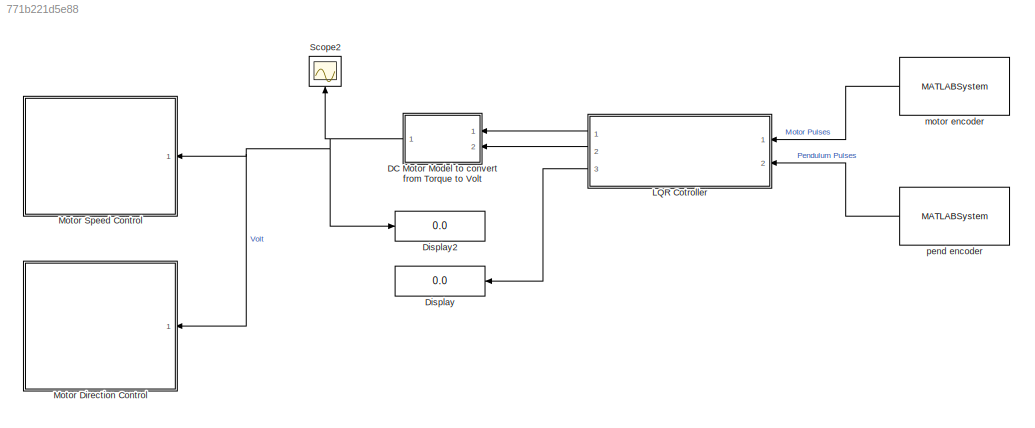
MODEL slx_771b221d5e88
KIND model
CONFIG AbsTol = auto
CONFIG EnableMultiTasking = on
CONFIG FixedStep = auto
CONFIG MaxStep = auto
CONFIG MinStep = auto
CONFIG RelTol = 1e-3
CONFIG SampleTimeConstraint = Unconstrained
CONFIG Solver = FixedStepAuto
CONFIG SolverName = FixedStepAuto
CONFIG StartTime = 0.0
CONFIG StopTime = inf
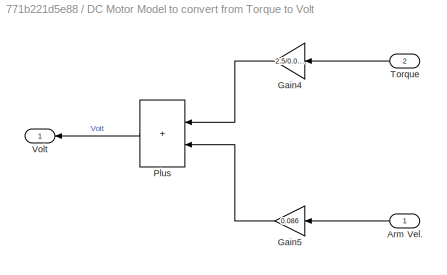
BLOCK [SubSystem] DC Motor Model to convert from Torque to Volt
  NameLocation = top
  Ports = [2, 1]
  RequestExecContextInheritance = off
BLOCK [Inport] DC Motor Model to convert from Torque to Volt/Arm Vel.
  NameLocation = top
BLOCK [Gain] DC Motor Model to convert from Torque to Volt/Gain4
  Gain = 2.5/0.086
  NameLocation = top
BLOCK [Gain] DC Motor Model to convert from Torque to Volt/Gain5
  Gain = 0.086
  NameLocation = top
BLOCK [Sum] DC Motor Model to convert from Torque to Volt/Plus
  IconShape = rectangular
  NameLocation = top
  Ports = [2, 1]
BLOCK [Inport] DC Motor Model to convert from Torque to Volt/Torque
  Port = 2
BLOCK [Outport] DC Motor Model to convert from Torque to Volt/Volt
BLOCK [Display] Display
  Decimation = 1
  NameLocation = top
  Ports = [1]
BLOCK [Display] Display2
  Decimation = 1
  Ports = [1]
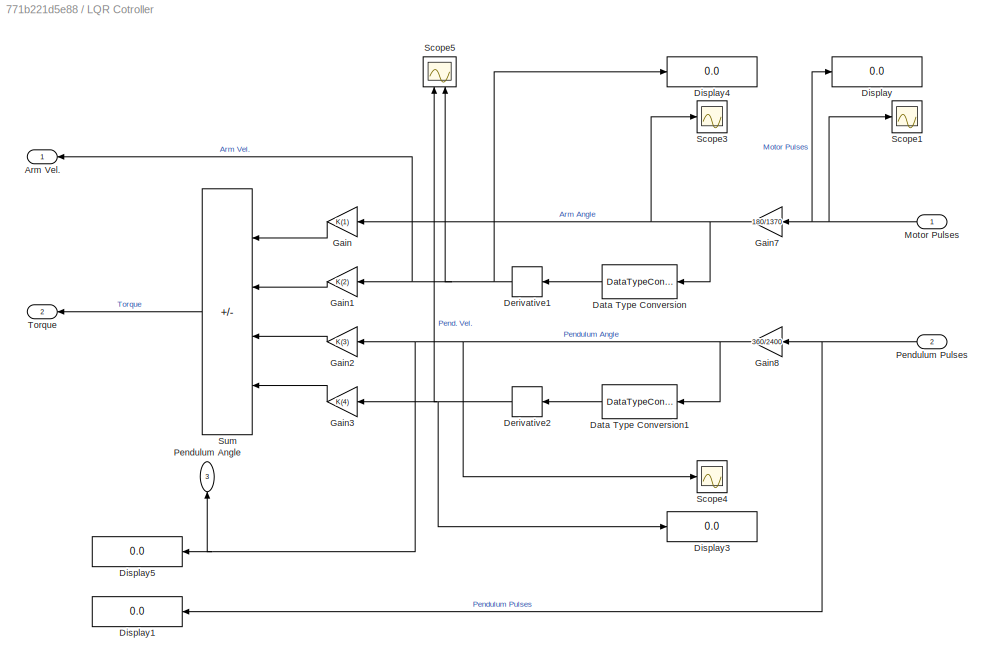
BLOCK [SubSystem] LQR Cotroller
  NameLocation = top
  Ports = [2, 3]
  RequestExecContextInheritance = off
BLOCK [Outport] LQR Cotroller/Arm Vel.
BLOCK [DataTypeConversion] LQR Cotroller/Data Type Conversion
  NameLocation = top
  OutDataTypeStr = double
  RndMeth = Floor
  SaturateOnIntegerOverflow = off
BLOCK [DataTypeConversion] LQR Cotroller/Data Type Conversion1
  NameLocation = top
  OutDataTypeStr = double
  RndMeth = Floor
  SaturateOnIntegerOverflow = off
BLOCK [Derivative] LQR Cotroller/Derivative1
  NameLocation = top
BLOCK [Derivative] LQR Cotroller/Derivative2
  NameLocation = top
BLOCK [Display] LQR Cotroller/Display
  Decimation = 1
  Ports = [1]
BLOCK [Display] LQR Cotroller/Display1
  Decimation = 1
  NameLocation = top
  Ports = [1]
BLOCK [Display] LQR Cotroller/Display3
  Decimation = 1
  Ports = [1]
BLOCK [Display] LQR Cotroller/Display4
  Decimation = 1
  Ports = [1]
BLOCK [Display] LQR Cotroller/Display5
  Decimation = 1
  NameLocation = top
  Ports = [1]
BLOCK [Gain] LQR Cotroller/Gain
  Gain = K(1)
  NameLocation = top
BLOCK [Gain] LQR Cotroller/Gain1
  Gain = K(2)
  NameLocation = top
BLOCK [Gain] LQR Cotroller/Gain2
  Gain = K(3)
  NameLocation = top
BLOCK [Gain] LQR Cotroller/Gain3
  Gain = K(4)
  NameLocation = top
BLOCK [Gain] LQR Cotroller/Gain7
  Gain = 180/1370
  NameLocation = top
BLOCK [Gain] LQR Cotroller/Gain8
  Gain = 360/2400
  NameLocation = top
BLOCK [Inport] LQR Cotroller/Motor Pulses
BLOCK [Outport] LQR Cotroller/Pendulum Angle
  NameLocation = right
  Port = 3
BLOCK [Inport] LQR Cotroller/Pendulum Pulses
  Port = 2
BLOCK [Scope] LQR Cotroller/Scope1
  Floating = off
  NumInputPorts = 1
  Ports = [1]
  ScopeSpecificationString = Simulink.scopes.TimeScopeBlockCfg('CurrentConfiguration', extmgr.ConfigurationSet(extmgr.Configuration('Core','General UI',true),extmgr.Configuration('Core','Source UI',true),extmgr.Configuration('Sources','WiredSimulink',true,'DataLoggingVariableName','ScopeData1'),extmgr.Configuration('Visuals','Time Domain',true),extmgr.Configuration('Tools','Plot Navigation',true),extmgr.Configuration('Tools',...<+40ch>
BLOCK [Scope] LQR Cotroller/Scope3
  Floating = off
  NumInputPorts = 1
  Ports = [1]
  ScopeSpecificationString = Simulink.scopes.TimeScopeBlockCfg('CurrentConfiguration', extmgr.ConfigurationSet(extmgr.Configuration('Core','General UI',true),extmgr.Configuration('Core','Source UI',true),extmgr.Configuration('Sources','WiredSimulink',true,'DataLoggingVariableName','ScopeData1'),extmgr.Configuration('Visuals','Time Domain',true,'SerializedDisplays',{struct('MinYLimReal','-434.41423','MaxYLimReal','187.53832','...<+1485ch>
BLOCK [Scope] LQR Cotroller/Scope4
  Floating = off
  NumInputPorts = 1
  Ports = [1]
  ScopeSpecificationString = Simulink.scopes.TimeScopeBlockCfg('CurrentConfiguration', extmgr.ConfigurationSet(extmgr.Configuration('Core','General UI',true),extmgr.Configuration('Core','Source UI',true),extmgr.Configuration('Sources','WiredSimulink',true,'DataLoggingVariableName','ScopeData2'),extmgr.Configuration('Visuals','Time Domain',true,'SerializedDisplays',{struct('MinYLimReal','-322.35','MaxYLimReal','60.15','YLabelR...<+1465ch>
BLOCK [Scope] LQR Cotroller/Scope5
  Floating = off
  NameLocation = right
  NumInputPorts = 2
  Ports = [2]
  ScopeSpecificationString = Simulink.scopes.TimeScopeBlockCfg('CurrentConfiguration', extmgr.ConfigurationSet(extmgr.Configuration('Core','General UI',true),extmgr.Configuration('Core','Source UI',true),extmgr.Configuration('Sources','WiredSimulink',true,'DataLoggingVariableName','ScopeData1'),extmgr.Configuration('Visuals','Time Domain',true,'SerializedDisplays',{struct('MinYLimReal','-553.16198','MaxYLimReal','628.14315','...<+2052ch>
BLOCK [Sum] LQR Cotroller/Sum
  IconShape = rectangular
  Inputs = ----
  NameLocation = top
  Ports = [4, 1]
BLOCK [Outport] LQR Cotroller/Torque
  Port = 2
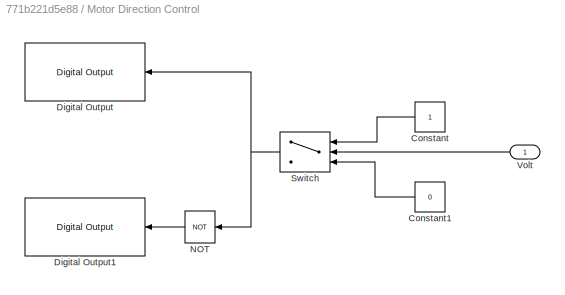
BLOCK [SubSystem] Motor Direction Control
  NameLocation = top
  Ports = [1]
  RequestExecContextInheritance = off
BLOCK [Constant] Motor Direction Control/Constant
  NameLocation = top
BLOCK [Constant] Motor Direction Control/Constant1
  NameLocation = top
  Value = 0
BLOCK [Reference] Motor Direction Control/Digital Output  REF=arduinolib/Digital Output
  NameLocation = top
  Ports = [1]
  SourceBlock = arduinolib/Digital Output
  SourceProductBaseCode = ARDUINO
  SourceType = Arduino Digital Output
BLOCK [Reference] Motor Direction Control/Digital Output1  REF=arduinolib/Digital Output
  NameLocation = top
  Ports = [1]
  SourceBlock = arduinolib/Digital Output
  SourceProductBaseCode = ARDUINO
  SourceType = Arduino Digital Output
BLOCK [Logic] Motor Direction Control/NOT
  AllPortsSameDT = off
  IconShape = distinctive
  NameLocation = top
  Operator = NOT
  OutDataTypeStr = boolean
  Ports = [1, 1]
BLOCK [Switch] Motor Direction Control/Switch
  Criteria = u2 > Threshold
  InputSameDT = off
  NameLocation = top
  SaturateOnIntegerOverflow = off
BLOCK [Inport] Motor Direction Control/Volt
  NameLocation = top
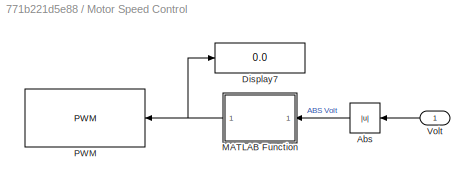
BLOCK [SubSystem] Motor Speed Control
  NameLocation = top
  Ports = [1]
  RequestExecContextInheritance = off
BLOCK [Abs] Motor Speed Control/Abs
  NameLocation = top
  SaturateOnIntegerOverflow = off
BLOCK [Display] Motor Speed Control/Display7
  Decimation = 1
  Ports = [1]
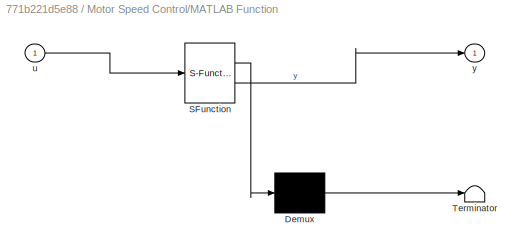
BLOCK [SubSystem] Motor Speed Control/MATLAB Function
  ErrorFcn = Stateflow.Translate.translate
  NameLocation = top
  PermitHierarchicalResolution = ExplicitOnly
  Ports = [1, 1]
  RequestExecContextInheritance = off
  SFBlockType = MATLAB Function
  TreatAsAtomicUnit = on
BLOCK [Demux] Motor Speed Control/MATLAB Function/ Demux 
  Outputs = 1
  Ports = [1, 1]
BLOCK [S-Function] Motor Speed Control/MATLAB Function/ SFunction 
  EnableBusSupport = on
  FunctionName = sf_sfun
  PortCounts = [1 2]
  Ports = [1, 2]
  SFcnIsStateOwnerBlock = off
  SFunctionDeploymentMode = off
  Tag = Stateflow S-Function 2
BLOCK [Terminator] Motor Speed Control/MATLAB Function/ Terminator 
BLOCK [Inport] Motor Speed Control/MATLAB Function/u
BLOCK [Outport] Motor Speed Control/MATLAB Function/y
BLOCK [Reference] Motor Speed Control/PWM  REF=arduinolib/PWM
  NameLocation = top
  Ports = [1]
  SourceBlock = arduinolib/PWM
  SourceProductBaseCode = ARDUINO
  SourceType = Arduino PWM
BLOCK [Inport] Motor Speed Control/Volt
BLOCK [Scope] Scope2
  Floating = off
  NameLocation = right
  NumInputPorts = 1
  Ports = [1]
  ScopeSpecificationString = Simulink.scopes.TimeScopeBlockCfg('CurrentConfiguration', extmgr.ConfigurationSet(extmgr.Configuration('Core','General UI',true),extmgr.Configuration('Core','Source UI',true),extmgr.Configuration('Sources','WiredSimulink',true,'DataLoggingVariableName','ScopeData2'),extmgr.Configuration('Visuals','Time Domain',true,'SerializedDisplays',{struct('MinYLimReal','-222.69532','MaxYLimReal','1690.75263',...<+1479ch>
BLOCK [MATLABSystem] motor encoder
  Encoder = 0
  MaskDisplay = disp('Encoder');\nport_label('output',1,'y');
  MaskType = Encoder_arduino
  NameLocation = top
  PinA = 2
  PinB = 3
  Ports = [0, 1]
  SampleTime = 0.01
  System = Encoder_arduino
BLOCK [MATLABSystem] pend encoder
  Encoder = 1
  MaskDisplay = disp('Encoder');\nport_label('output',1,'y');
  MaskType = Encoder_arduino
  NameLocation = top
  PinA = 18
  PinB = 19
  Ports = [0, 1]
  SampleTime = 0.01
  System = Encoder_arduino
LINE DC Motor Model to convert from Torque to Volt/Arm Vel.:1 -> DC Motor Model to convert from Torque to Volt/Gain5:1
LINE DC Motor Model to convert from Torque to Volt/Gain4:1 -> DC Motor Model to convert from Torque to Volt/Plus:1
LINE DC Motor Model to convert from Torque to Volt/Gain5:1 -> DC Motor Model to convert from Torque to Volt/Plus:2
LINE DC Motor Model to convert from Torque to Volt/Plus:1 -> DC Motor Model to convert from Torque to Volt/Volt:1
LINE DC Motor Model to convert from Torque to Volt/Torque:1 -> DC Motor Model to convert from Torque to Volt/Gain4:1
NET DC Motor Model to convert from Torque to Volt:1 -> Display2:1, Motor Direction Control:1, Motor Speed Control:1, Scope2:1
LINE LQR Cotroller/Data Type Conversion1:1 -> LQR Cotroller/Derivative2:1
LINE LQR Cotroller/Data Type Conversion:1 -> LQR Cotroller/Derivative1:1
NET LQR Cotroller/Derivative1:1 -> LQR Cotroller/Arm Vel.:1, LQR Cotroller/Display4:1, LQR Cotroller/Gain1:1, LQR Cotroller/Scope5:2
NET LQR Cotroller/Derivative2:1 -> LQR Cotroller/Display3:1, LQR Cotroller/Gain3:1, LQR Cotroller/Scope5:1
LINE LQR Cotroller/Gain1:1 -> LQR Cotroller/Sum:2
LINE LQR Cotroller/Gain2:1 -> LQR Cotroller/Sum:3
LINE LQR Cotroller/Gain3:1 -> LQR Cotroller/Sum:4
NET LQR Cotroller/Gain7:1 -> LQR Cotroller/Data Type Conversion:1, LQR Cotroller/Gain:1, LQR Cotroller/Scope3:1
NET LQR Cotroller/Gain8:1 -> LQR Cotroller/Data Type Conversion1:1, LQR Cotroller/Display5:1, LQR Cotroller/Gain2:1, LQR Cotroller/Pendulum Angle:1, LQR Cotroller/Scope4:1
LINE LQR Cotroller/Gain:1 -> LQR Cotroller/Sum:1
NET LQR Cotroller/Motor Pulses:1 -> LQR Cotroller/Display:1, LQR Cotroller/Gain7:1, LQR Cotroller/Scope1:1
NET LQR Cotroller/Pendulum Pulses:1 -> LQR Cotroller/Display1:1, LQR Cotroller/Gain8:1
LINE LQR Cotroller/Sum:1 -> LQR Cotroller/Torque:1
LINE LQR Cotroller:1 -> DC Motor Model to convert from Torque to Volt:1
LINE LQR Cotroller:2 -> DC Motor Model to convert from Torque to Volt:2
LINE LQR Cotroller:3 -> Display:1
LINE Motor Direction Control/Constant1:1 -> Motor Direction Control/Switch:3
LINE Motor Direction Control/Constant:1 -> Motor Direction Control/Switch:1
LINE Motor Direction Control/NOT:1 -> Motor Direction Control/Digital Output1:1
NET Motor Direction Control/Switch:1 -> Motor Direction Control/Digital Output:1, Motor Direction Control/NOT:1
LINE Motor Direction Control/Volt:1 -> Motor Direction Control/Switch:2
LINE Motor Speed Control/Abs:1 -> Motor Speed Control/MATLAB Function:1
NET Motor Speed Control/MATLAB Function:1 -> Motor Speed Control/Display7:1, Motor Speed Control/PWM:1
LINE Motor Speed Control/Volt:1 -> Motor Speed Control/Abs:1
LINE motor encoder:1 -> LQR Cotroller:1
LINE pend encoder:1 -> LQR Cotroller:2
note: NET lines group one-source signal fan-out (src -> all destinations, sorted); 1:1 wires keep LINE
CHART Motor Speed Control/MATLAB Function states=1 transitions=1
  STATE_LABEL 'eML_blk_kernel()'
  STATE_LABEL 'SCRIPT:\nfunction y = fcn(u)\nx = u;\nif x > 255\n    x = 255;\nelse\n    x = u + 128;\nend\ny = x;\n'
CHART  states=0 transitions=0
